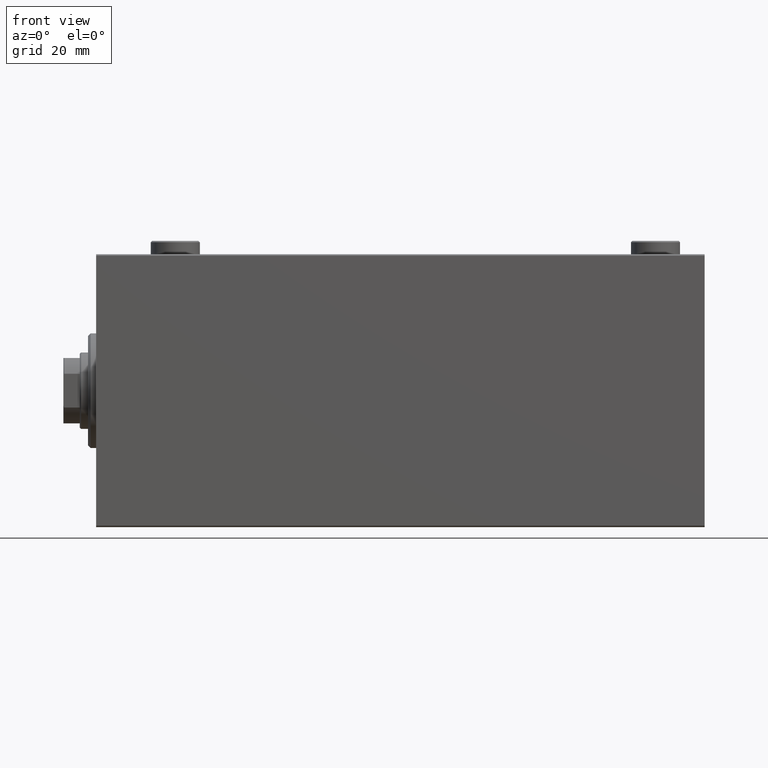
[diagram: clean part render]
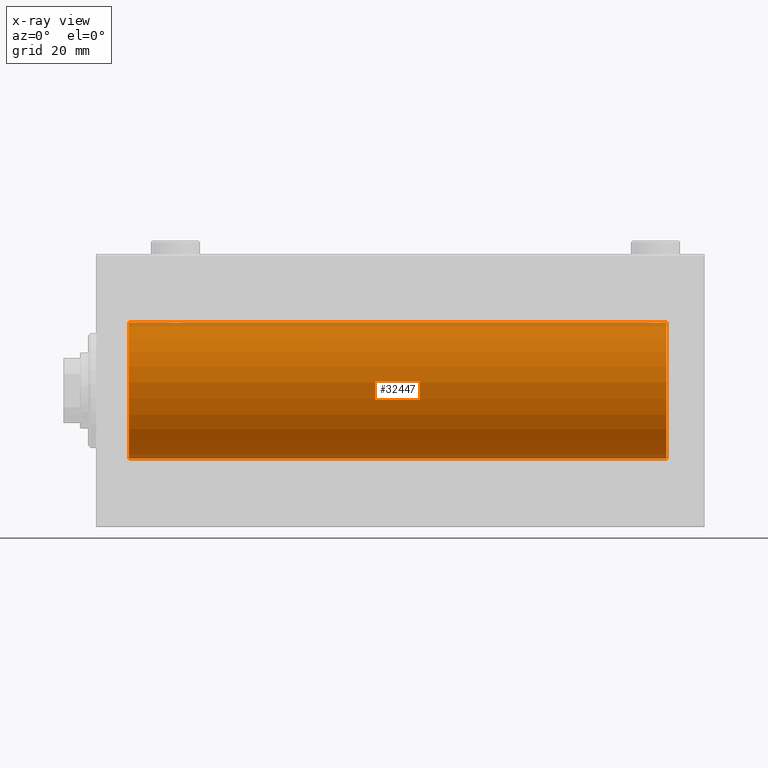
[diagram: x-ray — body ghosted, one internal face saturated and labeled with its STEP entity id]
A machine part, front view, then the same camera in x-ray: the body is ghosted and one INTERNAL B-rep face — a face not visible from any outside direction — is saturated and labeled: STEP entity #32447.
In plain terms, the highlighted cylindrical surface (partial cylindrical patch) has radius 25 mm, axis along (-1, -0, -0).
Its self-contained STEP definition (entity closure, byte-faithful):
#617 = DIRECTION ( 'NONE',  ( 0.000000000000000000, 0.000000000000000000, 1.000000000000000000 ) ) ;
#620 = CARTESIAN_POINT ( 'NONE',  ( 29.80788342405805835, -2.371528299825741648, -24.88734287464370709 ) ) ;
#935 = CARTESIAN_POINT ( 'NONE',  ( 209.0000000000000000, 0.000000000000000000, 0.000000000000000000 ) ) ;
#1347 = CARTESIAN_POINT ( 'NONE',  ( 27.74616804575498108, -2.169003991399877318, 24.90589728951138326 ) ) ;
#1577 = CARTESIAN_POINT ( 'NONE',  ( 28.19211657594193809, -2.371528299825754083, 24.88734287464370709 ) ) ;
#2034 = CARTESIAN_POINT ( 'NONE',  ( 26.57985090779070703, -0.6480119923854250619, 24.99212088949390420 ) ) ;
#2347 = CARTESIAN_POINT ( 'NONE',  ( 202.5000000000000000, -1.941505016884693205E-23, 25.00000000000000000 ) ) ;
#2543 = CARTESIAN_POINT ( 'NONE',  ( 207.4841784005765817, -0.3254210271412174005, -24.99840249400845238 ) ) ;
#2797 = CARTESIAN_POINT ( 'NONE',  ( 204.1921165759420091, -2.371528299825750530, 24.88734287464371420 ) ) ;
#3426 = CARTESIAN_POINT ( 'NONE',  ( 202.5000000000000000, -2.556506310510033360E-14, -25.00000000000000000 ) ) ;
#3847 = CARTESIAN_POINT ( 'NONE',  ( 30.11036796508864910, -2.245863995402895164, -24.89899750494197406 ) ) ;
#4141 = CARTESIAN_POINT ( 'NONE',  ( 209.0000000000000000, 0.000000000000000000, 25.00000000000000000 ) ) ;
#4363 = VERTEX_POINT ( 'NONE', #35147 ) ;
#4481 = VECTOR ( 'NONE', #20616, 1000.000000000000000 ) ;
#4530 = CARTESIAN_POINT ( 'NONE',  ( 30.88412382786470900, -1.651251241585097063, -24.94567559498348075 ) ) ;
#4600 = EDGE_CURVE ( 'NONE', #9365, #22156, #6016, .T. ) ;
#4847 = FACE_OUTER_BOUND ( 'NONE', #24598, .T. ) ;
#6011 = CARTESIAN_POINT ( 'NONE',  ( 204.6740342996054380, -2.484007091859785188, -24.87630842367763151 ) ) ;
#6016 = LINE ( 'NONE', #41583, #44082 ) ;
#6254 = EDGE_CURVE ( 'NONE', #24558, #25186, #30017, .T. ) ;
#6261 = CARTESIAN_POINT ( 'NONE',  ( 203.0125018416559897, -1.525407911884361534, 24.95379469572361941 ) ) ;
#6410 = VERTEX_POINT ( 'NONE', #23242 ) ;
#7338 = VERTEX_POINT ( 'NONE', #7490 ) ;
#7435 = VERTEX_POINT ( 'NONE', #32454 ) ;
#7490 = CARTESIAN_POINT ( 'NONE',  ( 207.5000000000000284, 3.061616978453486307E-15, -25.00000000000000000 ) ) ;
#7539 = CARTESIAN_POINT ( 'NONE',  ( 31.17011290280925451, -1.252049606094333578, -24.96900299967627745 ) ) ;
#7586 = CARTESIAN_POINT ( 'NONE',  ( 202.4999999999999716, -0.3305063766664006475, -24.99999999999999645 ) ) ;
#8235 = CARTESIAN_POINT ( 'NONE',  ( 30.98749815834398902, -1.525407911884361312, -24.95379469572362652 ) ) ;
#8274 = CARTESIAN_POINT ( 'NONE',  ( 29.64560666148631896, -2.420689345803765491, 24.88254961038873958 ) ) ;
#8734 = CARTESIAN_POINT ( 'NONE',  ( 27.88963203491136156, -2.245863995402906266, 24.89899750494197050 ) ) ;
#8956 = CARTESIAN_POINT ( 'NONE',  ( 28.83293504821939379, -2.499872792855087233, 24.87469871246083031 ) ) ;
#9090 = CARTESIAN_POINT ( 'NONE',  ( 31.50000000000000000, 3.061616978460191625E-15, -25.00000000000000000 ) ) ;
#9126 = DIRECTION ( 'NONE',  ( -1.000000000000000000, -0.000000000000000000, -0.000000000000000000 ) ) ;
#9365 = VERTEX_POINT ( 'NONE', #17713 ) ;
#9503 = CARTESIAN_POINT ( 'NONE',  ( 203.7461680457549846, -2.169003991399871545, 24.90589728951138682 ) ) ;
#9604 = DIRECTION ( 'NONE',  ( -1.000000000000000000, -0.000000000000000000, -0.000000000000000000 ) ) ;
#9892 = CARTESIAN_POINT ( 'NONE',  ( 207.1682764149396405, -1.255214705003171671, 24.96884293994578741 ) ) ;
#10540 = CARTESIAN_POINT ( 'NONE',  ( 12.00000000000001066, 0.000000000000000000, 0.000000000000000000 ) ) ;
#10821 = CARTESIAN_POINT ( 'NONE',  ( 202.7539362090594182, -1.109818057797436364, -24.97580694515542987 ) ) ;
#11240 = CARTESIAN_POINT ( 'NONE',  ( 28.19564339083698457, -2.372734907014171224, -24.88722742718433523 ) ) ;
#11469 = CARTESIAN_POINT ( 'NONE',  ( 27.74915976075945068, -2.170728182476717283, -24.90574631553725027 ) ) ;
#11471 = AXIS2_PLACEMENT_3D ( 'NONE', #935, #15016, #32810 ) ;
#11510 = CARTESIAN_POINT ( 'NONE',  ( 30.98538033717094464, -1.528152964861317020, 24.95362559291378801 ) ) ;
#11697 = CARTESIAN_POINT ( 'NONE',  ( 27.11814045851354038, -1.653834020452936038, -24.94550385189584674 ) ) ;
#11737 = CARTESIAN_POINT ( 'NONE',  ( 30.65121133559112110, -1.884161199660624009, 24.92916496727982434 ) ) ;
#12199 = CARTESIAN_POINT ( 'NONE',  ( 28.67052319885732103, -2.483544361357276742, 24.87635491893501793 ) ) ;
#12284 = CARTESIAN_POINT ( 'NONE',  ( 204.3509560983090694, -2.419770561643911133, 24.88263927071751169 ) ) ;
#12387 = CARTESIAN_POINT ( 'NONE',  ( 26.50000000000000355, -4.113702575029848227E-15, -25.00000000000000000 ) ) ;
#12843 = CARTESIAN_POINT ( 'NONE',  ( 26.50000000000000000, -0.3305063766663763336, -25.00000000000000355 ) ) ;
#12921 = CARTESIAN_POINT ( 'NONE',  ( 207.4999999999999432, -0.3305063766663741132, 24.99999999999999645 ) ) ;
#12948 = CARTESIAN_POINT ( 'NONE',  ( 206.1103679650887557, -2.245863995402904489, -24.89899750494197761 ) ) ;
#13171 = CARTESIAN_POINT ( 'NONE',  ( 203.7491597607594827, -2.170728182476743484, -24.90574631553725027 ) ) ;
#13373 = CARTESIAN_POINT ( 'NONE',  ( 206.9853803371709375, -1.528152964861302587, 24.95362559291378801 ) ) ;
#13616 = CARTESIAN_POINT ( 'NONE',  ( 207.2476025101954917, -1.106703319666876517, -24.97594585958023927 ) ) ;
#13810 = CARTESIAN_POINT ( 'NONE',  ( 207.2460637909407239, -1.109818057797415713, 24.97580694515542987 ) ) ;
#14707 = CARTESIAN_POINT ( 'NONE',  ( 29.64904390169096970, -2.419770561643905804, -24.88263927071751169 ) ) ;
#14934 = CARTESIAN_POINT ( 'NONE',  ( 31.50000000000000000, 3.061616978460191625E-15, -25.00000000000000000 ) ) ;
#15016 = DIRECTION ( 'NONE',  ( -1.000000000000000000, -0.000000000000000000, -0.000000000000000000 ) ) ;
#15239 = CARTESIAN_POINT ( 'NONE',  ( 26.50000000000000355, -1.940558383798427991E-23, 25.00000000000000000 ) ) ;
#15435 = CARTESIAN_POINT ( 'NONE',  ( 27.01250184165601453, -1.525407911884368861, 24.95379469572361941 ) ) ;
#15723 = CIRCLE ( 'NONE', #26053, 25.00000000000000000 ) ;
#15890 = CARTESIAN_POINT ( 'NONE',  ( 26.82988709719075970, -1.252049606094340239, 24.96900299967627390 ) ) ;
#16051 = EDGE_CURVE ( 'NONE', #7435, #4363, #26925, .T. ) ;
#16178 = CARTESIAN_POINT ( 'NONE',  ( 207.4201490922093001, -0.6480119923854179564, -24.99212088949390775 ) ) ;
#16387 = CARTESIAN_POINT ( 'NONE',  ( 206.5225677434018792, -1.989585286700258138, 24.92087098724766037 ) ) ;
#16442 = CARTESIAN_POINT ( 'NONE',  ( 202.6278403059139634, -0.8058335233485478533, 24.98746277938383287 ) ) ;
#16639 = CARTESIAN_POINT ( 'NONE',  ( 204.3543933385137166, -2.420689345803786363, -24.88254961038872892 ) ) ;
#16670 = CARTESIAN_POINT ( 'NONE',  ( 202.8298870971907775, -1.252049606094332246, 24.96900299967627390 ) ) ;
#16745 = CARTESIAN_POINT ( 'NONE',  ( 209.0000000000000000, 3.061616997868383043E-15, -25.00000000000000000 ) ) ;
#16771 = B_SPLINE_CURVE_WITH_KNOTS ( 'NONE', 3,
 ( #33689, #33456, #39921, #2034, #33229, #44080, #15890, #15435, #43850, #36700, #22597, #1347, #8734, #1577, #28422, #12199, #8956, #43623, #26293, #8274, #22142, #40384, #22832, #29287, #11737, #42516, #11510, #22372, #25602, #39693, #18685, #32761 ),
 .UNSPECIFIED., .F., .F.,
 ( 4, 2, 2, 2, 2, 2, 2, 2, 2, 2, 2, 2, 2, 2, 2, 4 ),
 ( 0.007821024441662235635, 0.008309723826317840303, 0.008798423210973443237, 0.009287122595629047905, 0.009775821980284652574, 0.01026452136494025724, 0.01075322074959586018, 0.01124192013425146484, 0.01173061951890706778, 0.01221931890356267245, 0.01270801828821827711, 0.01319671767287388178, 0.01368541705752948472, 0.01417411644218508938, 0.01466281582684069232, 0.01564021459615190165 ),
 .UNSPECIFIED. ) ;
#16828 = ORIENTED_EDGE ( 'NONE', *, *, #29038, .F. ) ;
#17045 = B_SPLINE_CURVE_WITH_KNOTS ( 'NONE', 3,
 ( #30500, #38116, #2543, #16178, #27265, #13616, #17093, #27704, #26808, #40904, #23342, #44591, #12948, #27040, #41131, #23573, #37667, #34198, #6011, #16639, #30725, #44816, #13171, #41358, #35094, #35553, #38779, #24916, #10821, #21456, #7586, #3426 ),
 .UNSPECIFIED., .F., .F.,
 ( 4, 2, 2, 2, 2, 2, 2, 2, 2, 2, 2, 2, 2, 2, 2, 4 ),
 ( 0.007821024441662273799, 0.008309723826317883671, 0.008798423210973491809, 0.009287122595629101682, 0.009775821980284709820, 0.01026452136494031969, 0.01075322074959592783, 0.01124192013425153770, 0.01173061951890714757, 0.01221931890356275571, 0.01270801828821836385, 0.01319671767287397546, 0.01368541705752958360, 0.01417411644218519173, 0.01466281582684080161, 0.01564021459615198839 ),
 .UNSPECIFIED. ) ;
#17068 = CARTESIAN_POINT ( 'NONE',  ( 206.1072384583841597, -2.247417070759898383, 24.89885693081946982 ) ) ;
#17093 = CARTESIAN_POINT ( 'NONE',  ( 207.1701129028092510, -1.252049606094338241, -24.96900299967627390 ) ) ;
#17160 = EDGE_CURVE ( 'NONE', #24558, #7338, #27986, .T. ) ;
#17265 = DIRECTION ( 'NONE',  ( -1.000000000000000000, 0.000000000000000000, 0.000000000000000000 ) ) ;
#17713 = CARTESIAN_POINT ( 'NONE',  ( 202.5000000000000000, -2.556506310510033360E-14, -25.00000000000000000 ) ) ;
#17952 = CARTESIAN_POINT ( 'NONE',  ( 28.83676410361457343, -2.500125740978191846, -24.87467329022545925 ) ) ;
#18685 = CARTESIAN_POINT ( 'NONE',  ( 31.49999999999997158, -0.3305063766663706160, 25.00000000000000000 ) ) ;
#18873 = CARTESIAN_POINT ( 'NONE',  ( 28.67403429960540606, -2.484007091859761207, -24.87630842367763506 ) ) ;
#18900 = ORIENTED_EDGE ( 'NONE', *, *, #26572, .T. ) ;
#19553 = CARTESIAN_POINT ( 'NONE',  ( 27.01461966282905180, -1.528152964861308138, -24.95362559291378801 ) ) ;
#20138 = CARTESIAN_POINT ( 'NONE',  ( 203.1158761721353585, -1.651251241585108387, 24.94567559498349141 ) ) ;
#20308 = CARTESIAN_POINT ( 'NONE',  ( 26.50000000000000355, -4.113702575029848227E-15, -25.00000000000000000 ) ) ;
#20310 = CARTESIAN_POINT ( 'NONE',  ( 207.5000000000000284, 1.260306552623302501E-15, 25.00000000000000000 ) ) ;
#20364 = CARTESIAN_POINT ( 'NONE',  ( 203.8896320349114148, -2.245863995402903157, 24.89899750494197761 ) ) ;
#20398 = CARTESIAN_POINT ( 'NONE',  ( 209.0000000000000000, 3.061616997868383043E-15, -25.00000000000000000 ) ) ;
#20616 = DIRECTION ( 'NONE',  ( -1.000000000000000000, -0.000000000000000000, -0.000000000000000000 ) ) ;
#21412 = CARTESIAN_POINT ( 'NONE',  ( 31.42014909220930363, -0.6480119923854200659, -24.99212088949392196 ) ) ;
#21456 = CARTESIAN_POINT ( 'NONE',  ( 202.5665064476025066, -0.6588655613946066136, -24.99312727339970763 ) ) ;
#21519 = ORIENTED_EDGE ( 'NONE', *, *, #24774, .T. ) ;
#22142 = CARTESIAN_POINT ( 'NONE',  ( 29.80435660916301899, -2.372734907014180994, 24.88722742718433878 ) ) ;
#22156 = VERTEX_POINT ( 'NONE', #9090 ) ;
#22331 = CARTESIAN_POINT ( 'NONE',  ( 30.52536182243081342, -1.987446652080259391, -24.92104239223420592 ) ) ;
#22372 = CARTESIAN_POINT ( 'NONE',  ( 31.16827641493957302, -1.255214705003186992, 24.96884293994578385 ) ) ;
#22597 = CARTESIAN_POINT ( 'NONE',  ( 27.47463817756919369, -1.987446652080269383, 24.92104239223420592 ) ) ;
#22832 = CARTESIAN_POINT ( 'NONE',  ( 30.25084023924055643, -2.170728182476726609, 24.90574631553725027 ) ) ;
#23242 = CARTESIAN_POINT ( 'NONE',  ( 207.5000000000000284, 1.260306552623302501E-15, 25.00000000000000000 ) ) ;
#23342 = CARTESIAN_POINT ( 'NONE',  ( 206.5253618224307388, -1.987446652080269827, -24.92104239223419881 ) ) ;
#23573 = CARTESIAN_POINT ( 'NONE',  ( 205.3294768011427323, -2.483544361357282515, -24.87635491893501083 ) ) ;
#23729 = VERTEX_POINT ( 'NONE', #20308 ) ;
#23994 = CARTESIAN_POINT ( 'NONE',  ( 204.6705231988572962, -2.483544361357272745, 24.87635491893501083 ) ) ;
#24558 = VERTEX_POINT ( 'NONE', #45549 ) ;
#24598 = EDGE_LOOP ( 'NONE', ( #44536, #43507, #40388, #27685, #21519, #35490, #18900, #16828, #27934, #36465, #25774, #38586 ) ) ;
#24618 = VECTOR ( 'NONE', #9604, 1000.000000000000000 ) ;
#24636 = CARTESIAN_POINT ( 'NONE',  ( 209.0000000000000000, 0.000000000000000000, 0.000000000000000000 ) ) ;
#24774 = EDGE_CURVE ( 'NONE', #22156, #23729, #29478, .T. ) ;
#24916 = CARTESIAN_POINT ( 'NONE',  ( 202.8317235850605584, -1.255214705003206976, -24.96884293994579096 ) ) ;
#25186 = VERTEX_POINT ( 'NONE', #34268 ) ;
#25561 = CARTESIAN_POINT ( 'NONE',  ( 29.32947680114268252, -2.483544361357266084, -24.87635491893501083 ) ) ;
#25602 = CARTESIAN_POINT ( 'NONE',  ( 31.24606379094067066, -1.109818057797421709, 24.97580694515541921 ) ) ;
#25774 = ORIENTED_EDGE ( 'NONE', *, *, #37245, .T. ) ;
#26053 = AXIS2_PLACEMENT_3D ( 'NONE', #10540, #17265, #38732 ) ;
#26136 = VECTOR ( 'NONE', #32337, 1000.000000000000000 ) ;
#26293 = CARTESIAN_POINT ( 'NONE',  ( 29.32596570039460104, -2.484007091859769645, 24.87630842367763506 ) ) ;
#26572 = EDGE_CURVE ( 'NONE', #41927, #32190, #15723, .T. ) ;
#26808 = CARTESIAN_POINT ( 'NONE',  ( 206.8841238278647268, -1.651251241585118823, -24.94567559498349141 ) ) ;
#26925 = LINE ( 'NONE', #40792, #44303 ) ;
#27040 = CARTESIAN_POINT ( 'NONE',  ( 205.8078834240581330, -2.371528299825754971, -24.88734287464371420 ) ) ;
#27265 = CARTESIAN_POINT ( 'NONE',  ( 207.3721596940861218, -0.8058335233485375282, -24.98746277938383287 ) ) ;
#27318 = EDGE_CURVE ( 'NONE', #34509, #4363, #16771, .T. ) ;
#27679 = CARTESIAN_POINT ( 'NONE',  ( 205.6456066614862834, -2.420689345803765935, 24.88254961038872892 ) ) ;
#27685 = ORIENTED_EDGE ( 'NONE', *, *, #4600, .T. ) ;
#27704 = CARTESIAN_POINT ( 'NONE',  ( 206.9874981583440103, -1.525407911884367751, -24.95379469572361941 ) ) ;
#27934 = ORIENTED_EDGE ( 'NONE', *, *, #27318, .T. ) ;
#27986 = LINE ( 'NONE', #20398, #4481 ) ;
#28422 = CARTESIAN_POINT ( 'NONE',  ( 28.35095609830903740, -2.419770561643915130, 24.88263927071751169 ) ) ;
#28793 = CARTESIAN_POINT ( 'NONE',  ( 29.16706495178060621, -2.499872792855077464, -24.87469871246082320 ) ) ;
#29038 = EDGE_CURVE ( 'NONE', #34509, #32190, #41264, .T. ) ;
#29287 = CARTESIAN_POINT ( 'NONE',  ( 30.52256774340189693, -1.989585286700251920, 24.92087098724766747 ) ) ;
#29478 = B_SPLINE_CURVE_WITH_KNOTS ( 'NONE', 3,
 ( #14934, #43123, #32268, #21412, #39193, #35507, #7539, #8235, #4530, #35735, #22331, #36427, #3847, #620, #14707, #25561, #28793, #17952, #18873, #42897, #11240, #32034, #11469, #36200, #43352, #11697, #19553, #33644, #33184, #43808, #12843, #12387 ),
 .UNSPECIFIED., .F., .F.,
 ( 4, 2, 2, 2, 2, 2, 2, 2, 2, 2, 2, 2, 2, 2, 2, 4 ),
 ( 0.007821024441662299820, 0.008309723826317907958, 0.008798423210973517830, 0.009287122595629122498, 0.009775821980284727167, 0.01026452136494033184, 0.01075322074959593650, 0.01124192013425154291, 0.01173061951890714757, 0.01221931890356275051, 0.01270801828821835691, 0.01319671767287396158, 0.01368541705752956625, 0.01417411644218517092, 0.01466281582684077732, 0.01564021459615199186 ),
 .UNSPECIFIED. ) ;
#30017 = CIRCLE ( 'NONE', #44767, 25.00000000000000000 ) ;
#30475 = CARTESIAN_POINT ( 'NONE',  ( 205.8043566091629657, -2.372734907014176553, 24.88722742718433167 ) ) ;
#30500 = CARTESIAN_POINT ( 'NONE',  ( 207.5000000000000284, 3.061616978453486307E-15, -25.00000000000000000 ) ) ;
#30527 = CARTESIAN_POINT ( 'NONE',  ( 203.3461666385066167, -1.881857718844722305, 24.92933960374833546 ) ) ;
#30536 = EDGE_CURVE ( 'NONE', #25186, #6410, #35805, .T. ) ;
#30725 = CARTESIAN_POINT ( 'NONE',  ( 204.1956433908369775, -2.372734907014188543, -24.88722742718433167 ) ) ;
#31147 = CARTESIAN_POINT ( 'NONE',  ( 207.4334935523974650, -0.6588655613945841871, 24.99312727339970763 ) ) ;
#31436 = CARTESIAN_POINT ( 'NONE',  ( 12.00000000000001066, 3.061616997868383043E-15, -25.00000000000000000 ) ) ;
#32034 = CARTESIAN_POINT ( 'NONE',  ( 27.89276154161591137, -2.247417070759893498, -24.89885693081945917 ) ) ;
#32190 = VERTEX_POINT ( 'NONE', #37929 ) ;
#32268 = CARTESIAN_POINT ( 'NONE',  ( 31.48417840057656747, -0.3254210271412200650, -24.99840249400844527 ) ) ;
#32337 = DIRECTION ( 'NONE',  ( -1.000000000000000000, -0.000000000000000000, -0.000000000000000000 ) ) ;
#32447 = ADVANCED_FACE ( 'NONE', ( #4847 ), #36053, .F. ) ;
#32454 = CARTESIAN_POINT ( 'NONE',  ( 202.5000000000000000, -1.941505016884693205E-23, 25.00000000000000000 ) ) ;
#32761 = CARTESIAN_POINT ( 'NONE',  ( 31.50000000000000000, -5.721564010423432822E-15, 25.00000000000000000 ) ) ;
#32810 = DIRECTION ( 'NONE',  ( 0.000000000000000000, 0.000000000000000000, 1.000000000000000000 ) ) ;
#32843 = VECTOR ( 'NONE', #45594, 1000.000000000000000 ) ;
#33184 = CARTESIAN_POINT ( 'NONE',  ( 26.75393620905933290, -1.109818057797416158, -24.97580694515542277 ) ) ;
#33229 = CARTESIAN_POINT ( 'NONE',  ( 26.62784030591392437, -0.8058335233485486304, 24.98746277938383287 ) ) ;
#33304 = EDGE_CURVE ( 'NONE', #7338, #9365, #17045, .T. ) ;
#33456 = CARTESIAN_POINT ( 'NONE',  ( 26.50000000000000711, -0.1631750940176215914, 25.00000000000000711 ) ) ;
#33644 = CARTESIAN_POINT ( 'NONE',  ( 26.83172358506043054, -1.255214705003178555, -24.96884293994578030 ) ) ;
#33689 = CARTESIAN_POINT ( 'NONE',  ( 26.50000000000000355, -1.940558383798427991E-23, 25.00000000000000000 ) ) ;
#33775 = CARTESIAN_POINT ( 'NONE',  ( 202.4999999999999716, -0.1631750940176196485, 25.00000000000000711 ) ) ;
#34104 = CARTESIAN_POINT ( 'NONE',  ( 209.0000000000000000, 0.000000000000000000, 25.00000000000000000 ) ) ;
#34198 = CARTESIAN_POINT ( 'NONE',  ( 204.8367641036146267, -2.500125740978212718, -24.87467329022544504 ) ) ;
#34268 = CARTESIAN_POINT ( 'NONE',  ( 209.0000000000000000, 0.000000000000000000, 25.00000000000000000 ) ) ;
#34396 = CARTESIAN_POINT ( 'NONE',  ( 206.2508402392405742, -2.170728182476731050, 24.90574631553725027 ) ) ;
#34457 = CARTESIAN_POINT ( 'NONE',  ( 203.4746381775691759, -1.987446652080261167, 24.92104239223419881 ) ) ;
#34509 = VERTEX_POINT ( 'NONE', #15239 ) ;
#34843 = CARTESIAN_POINT ( 'NONE',  ( 205.3259657003945620, -2.484007091859768313, 24.87630842367763151 ) ) ;
#35094 = CARTESIAN_POINT ( 'NONE',  ( 203.3487886644088576, -1.884161199660639774, -24.92916496727981368 ) ) ;
#35147 = CARTESIAN_POINT ( 'NONE',  ( 31.50000000000000000, -5.721564010423432822E-15, 25.00000000000000000 ) ) ;
#35490 = ORIENTED_EDGE ( 'NONE', *, *, #36285, .T. ) ;
#35507 = CARTESIAN_POINT ( 'NONE',  ( 31.24760251019550950, -1.106703319666878071, -24.97594585958023572 ) ) ;
#35553 = CARTESIAN_POINT ( 'NONE',  ( 203.1181404585134942, -1.653834020452961129, -24.94550385189584318 ) ) ;
#35561 = B_SPLINE_CURVE_WITH_KNOTS ( 'NONE', 3,
 ( #2347, #33775, #41385, #44849, #16442, #40475, #16670, #6261, #20138, #30527, #34457, #9503, #20364, #2797, #12284, #23994, #45018, #38310, #34843, #27679, #30475, #17068, #34396, #16387, #41775, #44567, #13373, #9892, #13810, #31147, #12921, #20310 ),
 .UNSPECIFIED., .F., .F.,
 ( 4, 2, 2, 2, 2, 2, 2, 2, 2, 2, 2, 2, 2, 2, 2, 4 ),
 ( 0.007821024441662285942, 0.008309723826317895815, 0.008798423210973505687, 0.009287122595629115560, 0.009775821980284725432, 0.01026452136494033357, 0.01075322074959594344, 0.01124192013425155331, 0.01173061951890716319, 0.01221931890356277306, 0.01270801828821838120, 0.01319671767287399280, 0.01368541705752960094, 0.01417411644218521255, 0.01466281582684082069, 0.01564021459615200921 ),
 .UNSPECIFIED. ) ;
#35735 = CARTESIAN_POINT ( 'NONE',  ( 30.65383336149337978, -1.881857718844712091, -24.92933960374833546 ) ) ;
#35805 = LINE ( 'NONE', #4141, #26136 ) ;
#36053 = CYLINDRICAL_SURFACE ( 'NONE', #11471, 25.00000000000000000 ) ;
#36200 = CARTESIAN_POINT ( 'NONE',  ( 27.47743225659810307, -1.989585286700244149, -24.92087098724765681 ) ) ;
#36285 = EDGE_CURVE ( 'NONE', #23729, #41927, #37997, .T. ) ;
#36427 = CARTESIAN_POINT ( 'NONE',  ( 30.25383195424502958, -2.169003991399867104, -24.90589728951138326 ) ) ;
#36465 = ORIENTED_EDGE ( 'NONE', *, *, #16051, .F. ) ;
#36700 = CARTESIAN_POINT ( 'NONE',  ( 27.34616663850662377, -1.881857718844722305, 24.92933960374833902 ) ) ;
#37245 = EDGE_CURVE ( 'NONE', #7435, #6410, #35561, .T. ) ;
#37445 = DIRECTION ( 'NONE',  ( -1.000000000000000000, -0.000000000000000000, -0.000000000000000000 ) ) ;
#37667 = CARTESIAN_POINT ( 'NONE',  ( 205.1670649517806169, -2.499872792855094339, -24.87469871246082675 ) ) ;
#37929 = CARTESIAN_POINT ( 'NONE',  ( 12.00000000000001066, 0.000000000000000000, 25.00000000000000000 ) ) ;
#37997 = LINE ( 'NONE', #16745, #32843 ) ;
#38116 = CARTESIAN_POINT ( 'NONE',  ( 207.5000000000000284, -0.1631750940176163456, -25.00000000000000711 ) ) ;
#38310 = CARTESIAN_POINT ( 'NONE',  ( 205.1632358963854017, -2.500125740978198063, 24.87467329022544504 ) ) ;
#38586 = ORIENTED_EDGE ( 'NONE', *, *, #30536, .F. ) ;
#38732 = DIRECTION ( 'NONE',  ( 0.000000000000000000, 0.000000000000000000, 1.000000000000000000 ) ) ;
#38779 = CARTESIAN_POINT ( 'NONE',  ( 203.0146196628290056, -1.528152964861335894, -24.95362559291378801 ) ) ;
#39193 = CARTESIAN_POINT ( 'NONE',  ( 31.37215969408607563, -0.8058335233485418581, -24.98746277938382931 ) ) ;
#39693 = CARTESIAN_POINT ( 'NONE',  ( 31.43349355239748988, -0.6588655613945929579, 24.99312727339970053 ) ) ;
#39921 = CARTESIAN_POINT ( 'NONE',  ( 26.51582159942343608, -0.3254210271412246724, 24.99840249400844883 ) ) ;
#40384 = CARTESIAN_POINT ( 'NONE',  ( 30.10723845838409929, -2.247417070759903268, 24.89885693081946272 ) ) ;
#40388 = ORIENTED_EDGE ( 'NONE', *, *, #33304, .T. ) ;
#40475 = CARTESIAN_POINT ( 'NONE',  ( 202.7523974898045083, -1.106703319666886065, 24.97594585958023927 ) ) ;
#40792 = CARTESIAN_POINT ( 'NONE',  ( 209.0000000000000000, 0.000000000000000000, 25.00000000000000000 ) ) ;
#40904 = CARTESIAN_POINT ( 'NONE',  ( 206.6538333614933833, -1.881857718844732741, -24.92933960374833546 ) ) ;
#41131 = CARTESIAN_POINT ( 'NONE',  ( 205.6490439016910443, -2.419770561643916018, -24.88263927071751169 ) ) ;
#41264 = LINE ( 'NONE', #34104, #24618 ) ;
#41358 = CARTESIAN_POINT ( 'NONE',  ( 203.4774322565981777, -1.989585286700270128, -24.92087098724766747 ) ) ;
#41385 = CARTESIAN_POINT ( 'NONE',  ( 202.5158215994234467, -0.3254210271412218414, 24.99840249400845238 ) ) ;
#41583 = CARTESIAN_POINT ( 'NONE',  ( 209.0000000000000000, 3.061616997868383043E-15, -25.00000000000000000 ) ) ;
#41775 = CARTESIAN_POINT ( 'NONE',  ( 206.6512113355911424, -1.884161199660603137, 24.92916496727982079 ) ) ;
#41927 = VERTEX_POINT ( 'NONE', #31436 ) ;
#42516 = CARTESIAN_POINT ( 'NONE',  ( 30.88185954148645251, -1.653834020452945364, 24.94550385189585029 ) ) ;
#42895 = DIRECTION ( 'NONE',  ( -1.000000000000000000, 0.000000000000000000, 0.000000000000000000 ) ) ;
#42897 = CARTESIAN_POINT ( 'NONE',  ( 28.35439333851368460, -2.420689345803756165, -24.88254961038873958 ) ) ;
#43123 = CARTESIAN_POINT ( 'NONE',  ( 31.50000000000000000, -0.1631750940176180942, -25.00000000000001066 ) ) ;
#43352 = CARTESIAN_POINT ( 'NONE',  ( 27.34878866440888245, -1.884161199660614017, -24.92916496727982434 ) ) ;
#43507 = ORIENTED_EDGE ( 'NONE', *, *, #17160, .T. ) ;
#43623 = CARTESIAN_POINT ( 'NONE',  ( 29.16323589638543012, -2.500125740978201172, 24.87467329022545215 ) ) ;
#43808 = CARTESIAN_POINT ( 'NONE',  ( 26.56650644760252789, -0.6588655613945878509, -24.99312727339970763 ) ) ;
#43850 = CARTESIAN_POINT ( 'NONE',  ( 27.11587617213529100, -1.651251241585107055, 24.94567559498349141 ) ) ;
#44080 = CARTESIAN_POINT ( 'NONE',  ( 26.75239748980449050, -1.106703319666886065, 24.97594585958023572 ) ) ;
#44082 = VECTOR ( 'NONE', #37445, 1000.000000000000000 ) ;
#44303 = VECTOR ( 'NONE', #9126, 1000.000000000000000 ) ;
#44536 = ORIENTED_EDGE ( 'NONE', *, *, #6254, .F. ) ;
#44567 = CARTESIAN_POINT ( 'NONE',  ( 206.8818595414864490, -1.653834020452921383, 24.94550385189584318 ) ) ;
#44591 = CARTESIAN_POINT ( 'NONE',  ( 206.2538319542450722, -2.169003991399880427, -24.90589728951138682 ) ) ;
#44767 = AXIS2_PLACEMENT_3D ( 'NONE', #24636, #42895, #617 ) ;
#44816 = CARTESIAN_POINT ( 'NONE',  ( 203.8927615416159540, -2.247417070759913038, -24.89885693081946982 ) ) ;
#44849 = CARTESIAN_POINT ( 'NONE',  ( 202.5798509077906715, -0.6480119923854225084, 24.99212088949390775 ) ) ;
#45018 = CARTESIAN_POINT ( 'NONE',  ( 204.8329350482193263, -2.499872792855083237, 24.87469871246082675 ) ) ;
#45549 = CARTESIAN_POINT ( 'NONE',  ( 209.0000000000000000, 3.061616997868383043E-15, -25.00000000000000000 ) ) ;
#45594 = DIRECTION ( 'NONE',  ( -1.000000000000000000, -0.000000000000000000, -0.000000000000000000 ) ) ;